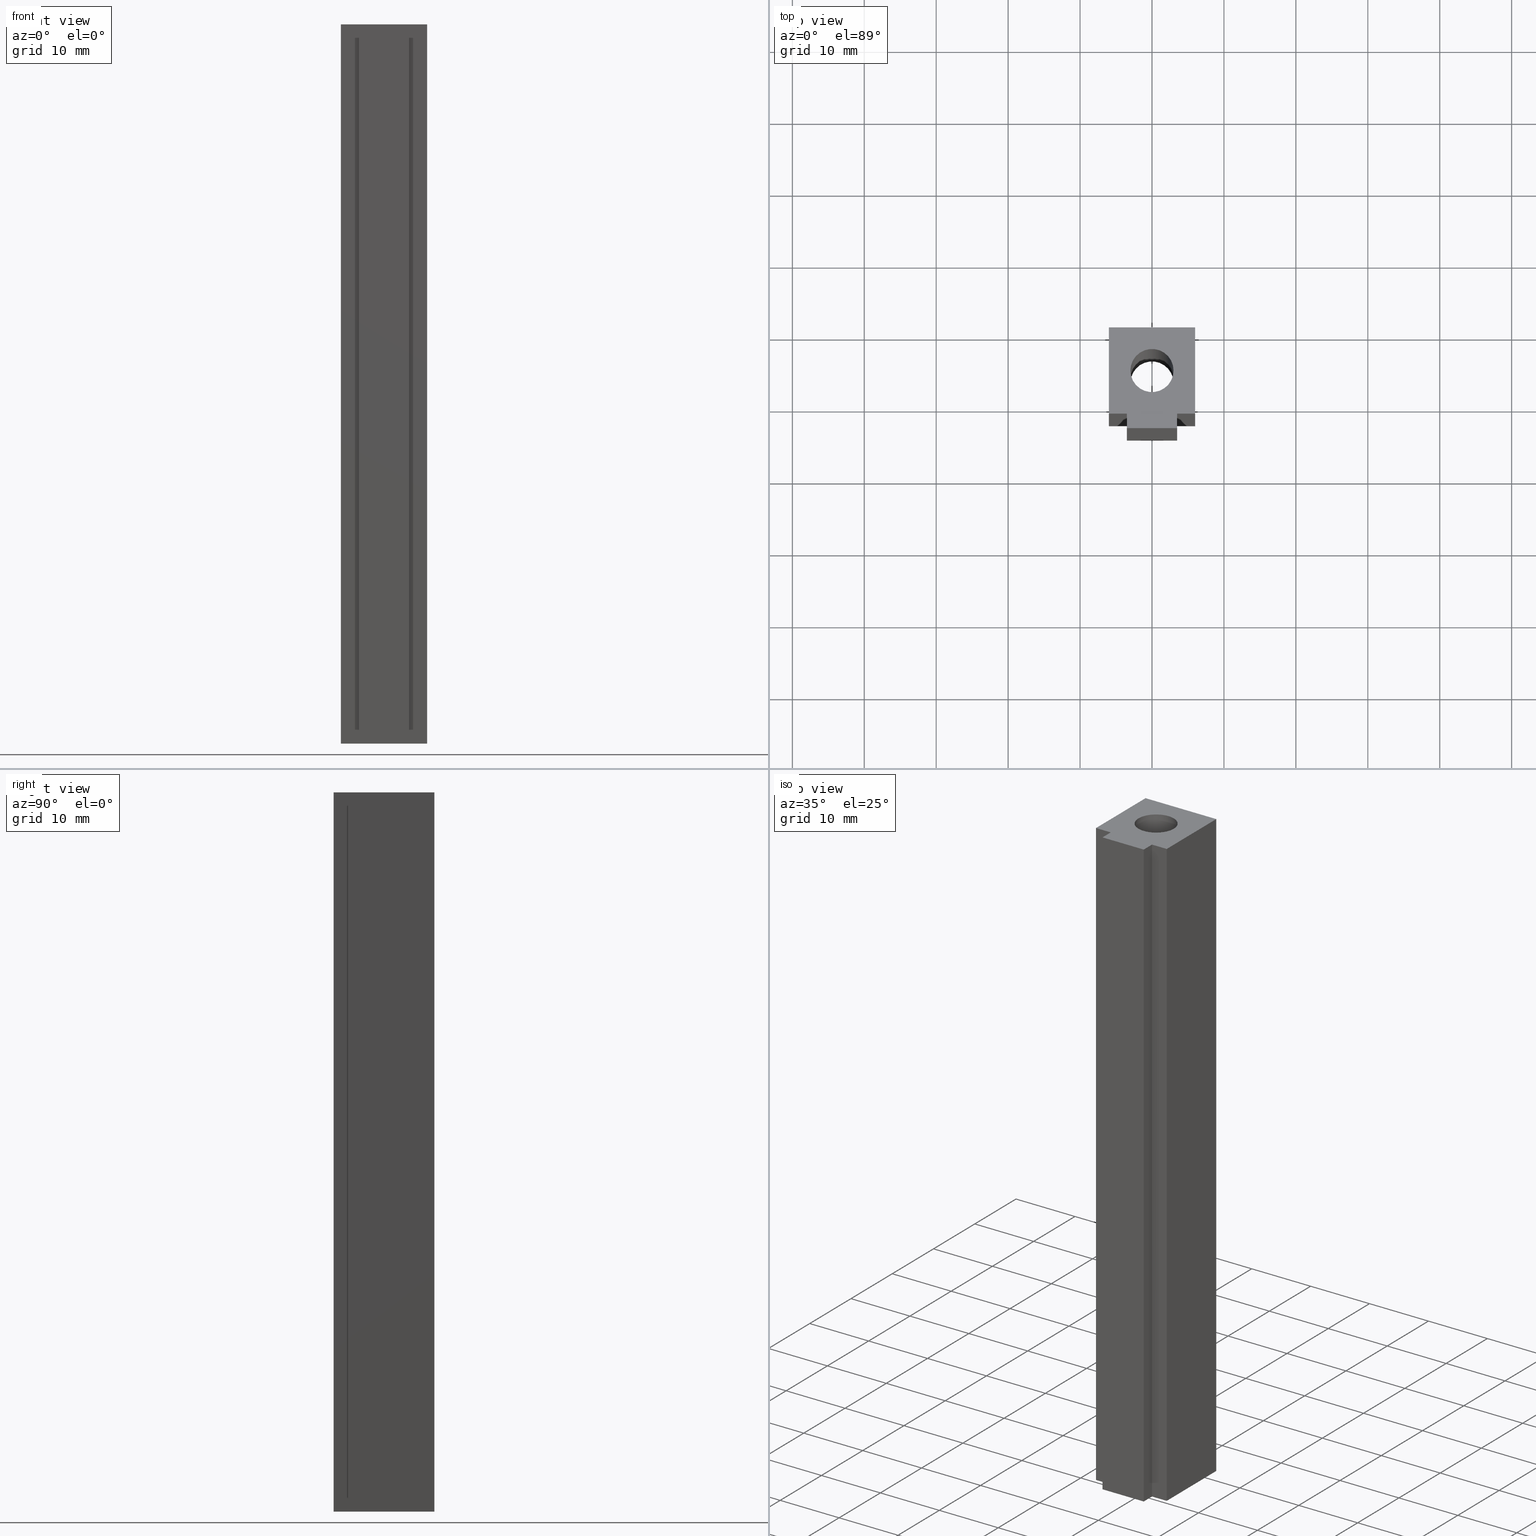
[diagram: canonical four-view strip — front | top / right | iso, engineering-drawing reading convention]
A machine part, canonical four-view strip (front | top / right | iso — engineering-drawing reading convention). The complete STEP part file that produces these views, byte-faithful:
ISO-10303-21;
HEADER;
/****************************************************************
 * Generated by software with PDElib inside                    *
 * PDElib Version v51a, created Wed 11/30/2011                  *
 * ITI Transcendata (http://www.transcendata.com/)              *
 ****************************************************************/
FILE_DESCRIPTION((''),'2;1');
FILE_NAME('H:\\Eigene Dateien\\CAD Workspace Vault\\CAD\\E_3_Nocken\\E_3_01_Aufschwei\S\_nocke\\09_Loch\\E_3_01_09_12_00_WKZ-0030.stp','2016-08-16T10:56:23',('dfischer'),(''),'Autodesk Inventor 2013','Autodesk Inventor 2013','');
FILE_SCHEMA(('AUTOMOTIVE_DESIGN { 1 0 10303 214 1 1 1 1 }'));
ENDSEC;
DATA;
#5=APPLICATION_CONTEXT('automotive design');
#6=APPLICATION_PROTOCOL_DEFINITION('International Standard','automotive_design',2001,#5);
#7=PRODUCT_CONTEXT('',#5,'mechanical');
#8=PRODUCT('E_3_01_09_12_00_WKZ-0030','E_3_01_09_12_00_WKZ-0030',$,(#7));
#9=PRODUCT_RELATED_PRODUCT_CATEGORY('part',$,(#8));
#10=PRODUCT_DEFINITION_FORMATION('',$,#8);
#11=PRODUCT_DEFINITION_CONTEXT('part definition',#5,'design');
#12=PRODUCT_DEFINITION('',$,#10,#11);
#18=(NAMED_UNIT(*)PLANE_ANGLE_UNIT()SI_UNIT($,.RADIAN.));
#19=DIMENSIONAL_EXPONENTS(0.0,0.0,0.0,0.0,0.0,0.0,0.0);
#20=PLANE_ANGLE_MEASURE_WITH_UNIT(PLANE_ANGLE_MEASURE(0.0174532925),#18);
#24=(CONVERSION_BASED_UNIT('DEGREE',#20)NAMED_UNIT(#19)PLANE_ANGLE_UNIT());
#28=(NAMED_UNIT(*)SI_UNIT($,.STERADIAN.)SOLID_ANGLE_UNIT());
#32=(LENGTH_UNIT()NAMED_UNIT(*)SI_UNIT(.MILLI.,.METRE.));
#34=UNCERTAINTY_MEASURE_WITH_UNIT(LENGTH_MEASURE(0.01),#32,'DISTANCE_ACCURACY_VALUE','');
#36=(GEOMETRIC_REPRESENTATION_CONTEXT(3)GLOBAL_UNCERTAINTY_ASSIGNED_CONTEXT((#34))GLOBAL_UNIT_ASSIGNED_CONTEXT((#24,#28,#32))REPRESENTATION_CONTEXT('None','None'));
#37=AXIS2_PLACEMENT_3D('',#38,#39,#40);
#38=CARTESIAN_POINT('',(0.0,0.0,0.0));
#39=DIRECTION('',(0.0,0.0,1.0));
#40=DIRECTION('',(1.0,0.0,0.0));
#41=SHAPE_REPRESENTATION('',(#37),#36);
#42=PRODUCT_DEFINITION_SHAPE('','',#12);
#43=SHAPE_DEFINITION_REPRESENTATION(#42,#41);
#49=(NAMED_UNIT(*)PLANE_ANGLE_UNIT()SI_UNIT($,.RADIAN.));
#50=DIMENSIONAL_EXPONENTS(0.0,0.0,0.0,0.0,0.0,0.0,0.0);
#51=PLANE_ANGLE_MEASURE_WITH_UNIT(PLANE_ANGLE_MEASURE(0.0174532925),#49);
#55=(CONVERSION_BASED_UNIT('DEGREE',#51)NAMED_UNIT(#50)PLANE_ANGLE_UNIT());
#59=(NAMED_UNIT(*)SI_UNIT($,.STERADIAN.)SOLID_ANGLE_UNIT());
#63=(LENGTH_UNIT()NAMED_UNIT(*)SI_UNIT(.MILLI.,.METRE.));
#65=UNCERTAINTY_MEASURE_WITH_UNIT(LENGTH_MEASURE(0.000001),#63,'DISTANCE_ACCURACY_VALUE','');
#67=(GEOMETRIC_REPRESENTATION_CONTEXT(3)GLOBAL_UNCERTAINTY_ASSIGNED_CONTEXT((#65))GLOBAL_UNIT_ASSIGNED_CONTEXT((#55,#59,#63))REPRESENTATION_CONTEXT('','3D'));
#68=CARTESIAN_POINT('',(4.930381E-032,-6.000000000000002,0.0));
#69=DIRECTION('',(0.0,0.0,1.0));
#70=DIRECTION('',(-1.0,0.0,0.0));
#71=AXIS2_PLACEMENT_3D('',#68,#69,#70);
#72=CYLINDRICAL_SURFACE('',#71,3.0);
#73=CARTESIAN_POINT('',(3.0,-6.000000000000002,-50.0));
#74=VERTEX_POINT('',#73);
#75=CARTESIAN_POINT('',(4.930381E-032,-6.000000000000002,-50.0));
#76=DIRECTION('',(0.0,0.0,1.0));
#77=DIRECTION('',(-1.0,0.0,0.0));
#78=AXIS2_PLACEMENT_3D('',#75,#76,#77);
#79=CIRCLE('',#78,3.0);
#80=EDGE_CURVE('',#74,#74,#79,.T.);
#81=ORIENTED_EDGE('',*,*,#80,.F.);
#82=EDGE_LOOP('',(#81));
#83=FACE_OUTER_BOUND('',#82,.T.);
#84=CARTESIAN_POINT('',(3.0,-6.000000000000002,50.0));
#85=VERTEX_POINT('',#84);
#86=CARTESIAN_POINT('',(4.930381E-032,-6.000000000000002,50.0));
#87=DIRECTION('',(0.0,0.0,-1.0));
#88=DIRECTION('',(-1.0,0.0,0.0));
#89=AXIS2_PLACEMENT_3D('',#86,#87,#88);
#90=CIRCLE('',#89,3.0);
#91=EDGE_CURVE('',#85,#85,#90,.T.);
#92=ORIENTED_EDGE('',*,*,#91,.F.);
#93=EDGE_LOOP('',(#92));
#94=FACE_BOUND('',#93,.T.);
#95=ADVANCED_FACE('',(#83,#94),#72,.F.);
#96=CARTESIAN_POINT('',(2.775558E-016,-6.80769230769231,-50.0));
#97=DIRECTION('',(0.0,0.0,1.0));
#98=DIRECTION('',(1.0,0.0,0.0));
#99=AXIS2_PLACEMENT_3D('',#96,#97,#98);
#100=PLANE('',#99);
#101=CARTESIAN_POINT('',(5.999999999999996,-12.000000000000004,-50.0));
#102=VERTEX_POINT('',#101);
#103=CARTESIAN_POINT('',(6.000000000000001,-2.220446E-015,-50.0));
#104=VERTEX_POINT('',#103);
#105=CARTESIAN_POINT('',(5.999999999999996,-12.000000000000004,-50.0));
#106=DIRECTION('',(0.0,1.0,0.0));
#107=VECTOR('',#106,12.000000000000002);
#108=LINE('',#105,#107);
#109=EDGE_CURVE('',#102,#104,#108,.T.);
#110=ORIENTED_EDGE('',*,*,#109,.F.);
#111=CARTESIAN_POINT('',(3.500000000000001,-12.000000000000002,-50.0));
#112=VERTEX_POINT('',#111);
#113=CARTESIAN_POINT('',(3.500000000000001,-12.000000000000002,-50.0));
#114=DIRECTION('',(1.0,0.0,0.0));
#115=VECTOR('',#114,2.499999999999995);
#116=LINE('',#113,#115);
#117=EDGE_CURVE('',#112,#102,#116,.T.);
#118=ORIENTED_EDGE('',*,*,#117,.F.);
#119=CARTESIAN_POINT('',(3.5,-14.000000000000004,-50.0));
#120=VERTEX_POINT('',#119);
#121=CARTESIAN_POINT('',(3.5,-14.000000000000004,-50.0));
#122=DIRECTION('',(0.0,1.0,0.0));
#123=VECTOR('',#122,2.000000000000002);
#124=LINE('',#121,#123);
#125=EDGE_CURVE('',#120,#112,#124,.T.);
#126=ORIENTED_EDGE('',*,*,#125,.F.);
#127=CARTESIAN_POINT('',(-3.5,-14.000000000000004,-50.0));
#128=VERTEX_POINT('',#127);
#129=CARTESIAN_POINT('',(-3.5,-14.000000000000004,-50.0));
#130=DIRECTION('',(1.0,0.0,0.0));
#131=VECTOR('',#130,7.000000000000001);
#132=LINE('',#129,#131);
#133=EDGE_CURVE('',#128,#120,#132,.T.);
#134=ORIENTED_EDGE('',*,*,#133,.F.);
#135=CARTESIAN_POINT('',(-3.500000000000001,-12.000000000000002,-50.0));
#136=VERTEX_POINT('',#135);
#137=CARTESIAN_POINT('',(-3.500000000000002,-12.000000000000002,-50.0));
#138=DIRECTION('',(0.0,-1.0,0.0));
#139=VECTOR('',#138,2.000000000000002);
#140=LINE('',#137,#139);
#141=EDGE_CURVE('',#136,#128,#140,.T.);
#142=ORIENTED_EDGE('',*,*,#141,.F.);
#143=CARTESIAN_POINT('',(-5.999999999999996,-12.000000000000004,-50.0));
#144=VERTEX_POINT('',#143);
#145=CARTESIAN_POINT('',(-5.999999999999996,-12.000000000000004,-50.0));
#146=DIRECTION('',(1.0,0.0,0.0));
#147=VECTOR('',#146,2.499999999999995);
#148=LINE('',#145,#147);
#149=EDGE_CURVE('',#144,#136,#148,.T.);
#150=ORIENTED_EDGE('',*,*,#149,.F.);
#151=CARTESIAN_POINT('',(-6.000000000000001,-2.220446E-015,-50.0));
#152=VERTEX_POINT('',#151);
#153=CARTESIAN_POINT('',(-6.000000000000001,-1.776357E-015,-50.0));
#154=DIRECTION('',(0.0,-1.0,0.0));
#155=VECTOR('',#154,12.000000000000002);
#156=LINE('',#153,#155);
#157=EDGE_CURVE('',#152,#144,#156,.T.);
#158=ORIENTED_EDGE('',*,*,#157,.F.);
#159=CARTESIAN_POINT('',(6.000000000000001,-2.220446E-015,-50.0));
#160=DIRECTION('',(-1.0,0.0,0.0));
#161=VECTOR('',#160,12.000000000000002);
#162=LINE('',#159,#161);
#163=EDGE_CURVE('',#104,#152,#162,.T.);
#164=ORIENTED_EDGE('',*,*,#163,.F.);
#165=EDGE_LOOP('',(#110,#118,#126,#134,#142,#150,#158,#164));
#166=FACE_OUTER_BOUND('',#165,.T.);
#167=ORIENTED_EDGE('',*,*,#80,.T.);
#168=EDGE_LOOP('',(#167));
#169=FACE_BOUND('',#168,.T.);
#170=ADVANCED_FACE('',(#166,#169),#100,.F.);
#171=CARTESIAN_POINT('',(3.500000000000001,-12.000000000000002,0.0));
#172=DIRECTION('',(1.0,0.0,0.0));
#173=DIRECTION('',(0.0,0.0,-1.0));
#174=AXIS2_PLACEMENT_3D('',#171,#172,#173);
#175=PLANE('',#174);
#176=CARTESIAN_POINT('',(3.500000000000001,-12.000000000000002,50.0));
#177=VERTEX_POINT('',#176);
#178=CARTESIAN_POINT('',(3.5,-14.000000000000004,50.0));
#179=VERTEX_POINT('',#178);
#180=CARTESIAN_POINT('',(3.500000000000001,-12.000000000000002,50.0));
#181=DIRECTION('',(0.0,-1.0,0.0));
#182=VECTOR('',#181,2.000000000000002);
#183=LINE('',#180,#182);
#184=EDGE_CURVE('',#177,#179,#183,.T.);
#185=ORIENTED_EDGE('',*,*,#184,.T.);
#186=CARTESIAN_POINT('',(3.5,-14.000000000000004,50.0));
#187=DIRECTION('',(0.0,0.0,-1.0));
#188=VECTOR('',#187,100.0);
#189=LINE('',#186,#188);
#190=EDGE_CURVE('',#179,#120,#189,.T.);
#191=ORIENTED_EDGE('',*,*,#190,.T.);
#192=ORIENTED_EDGE('',*,*,#125,.T.);
#193=CARTESIAN_POINT('',(3.500000000000001,-12.000000000000002,50.0));
#194=DIRECTION('',(0.0,0.0,-1.0));
#195=VECTOR('',#194,100.0);
#196=LINE('',#193,#195);
#197=EDGE_CURVE('',#177,#112,#196,.T.);
#198=ORIENTED_EDGE('',*,*,#197,.F.);
#199=EDGE_LOOP('',(#185,#191,#192,#198));
#200=FACE_OUTER_BOUND('',#199,.T.);
#201=ADVANCED_FACE('',(#200),#175,.T.);
#202=CARTESIAN_POINT('',(3.5,-14.000000000000004,0.0));
#203=DIRECTION('',(0.0,-1.0,0.0));
#204=DIRECTION('',(0.0,0.0,-1.0));
#205=AXIS2_PLACEMENT_3D('',#202,#203,#204);
#206=PLANE('',#205);
#207=CARTESIAN_POINT('',(-3.5,-14.000000000000004,50.0));
#208=VERTEX_POINT('',#207);
#209=CARTESIAN_POINT('',(3.5,-14.000000000000004,50.0));
#210=DIRECTION('',(-1.0,0.0,0.0));
#211=VECTOR('',#210,7.000000000000001);
#212=LINE('',#209,#211);
#213=EDGE_CURVE('',#179,#208,#212,.T.);
#214=ORIENTED_EDGE('',*,*,#213,.T.);
#215=CARTESIAN_POINT('',(-3.5,-14.000000000000004,50.0));
#216=DIRECTION('',(0.0,0.0,-1.0));
#217=VECTOR('',#216,100.0);
#218=LINE('',#215,#217);
#219=EDGE_CURVE('',#208,#128,#218,.T.);
#220=ORIENTED_EDGE('',*,*,#219,.T.);
#221=ORIENTED_EDGE('',*,*,#133,.T.);
#222=ORIENTED_EDGE('',*,*,#190,.F.);
#223=EDGE_LOOP('',(#214,#220,#221,#222));
#224=FACE_OUTER_BOUND('',#223,.T.);
#225=ADVANCED_FACE('',(#224),#206,.T.);
#226=CARTESIAN_POINT('',(-3.5,-14.000000000000004,0.0));
#227=DIRECTION('',(-1.0,0.0,0.0));
#228=DIRECTION('',(0.0,0.0,1.0));
#229=AXIS2_PLACEMENT_3D('',#226,#227,#228);
#230=PLANE('',#229);
#231=CARTESIAN_POINT('',(-3.500000000000001,-12.000000000000002,50.0));
#232=VERTEX_POINT('',#231);
#233=CARTESIAN_POINT('',(-3.5,-14.000000000000004,50.0));
#234=DIRECTION('',(0.0,1.0,0.0));
#235=VECTOR('',#234,2.000000000000002);
#236=LINE('',#233,#235);
#237=EDGE_CURVE('',#208,#232,#236,.T.);
#238=ORIENTED_EDGE('',*,*,#237,.T.);
#239=CARTESIAN_POINT('',(-3.500000000000001,-12.000000000000002,50.0));
#240=DIRECTION('',(0.0,0.0,-1.0));
#241=VECTOR('',#240,100.0);
#242=LINE('',#239,#241);
#243=EDGE_CURVE('',#232,#136,#242,.T.);
#244=ORIENTED_EDGE('',*,*,#243,.T.);
#245=ORIENTED_EDGE('',*,*,#141,.T.);
#246=ORIENTED_EDGE('',*,*,#219,.F.);
#247=EDGE_LOOP('',(#238,#244,#245,#246));
#248=FACE_OUTER_BOUND('',#247,.T.);
#249=ADVANCED_FACE('',(#248),#230,.T.);
#250=CARTESIAN_POINT('',(-3.500000000000001,-12.000000000000002,0.0));
#251=DIRECTION('',(0.0,-1.0,0.0));
#252=DIRECTION('',(0.0,0.0,-1.0));
#253=AXIS2_PLACEMENT_3D('',#250,#251,#252);
#254=PLANE('',#253);
#255=CARTESIAN_POINT('',(-5.999999999999996,-12.000000000000004,50.0));
#256=VERTEX_POINT('',#255);
#257=CARTESIAN_POINT('',(-3.500000000000001,-12.000000000000002,50.0));
#258=DIRECTION('',(-1.0,0.0,0.0));
#259=VECTOR('',#258,2.499999999999995);
#260=LINE('',#257,#259);
#261=EDGE_CURVE('',#232,#256,#260,.T.);
#262=ORIENTED_EDGE('',*,*,#261,.T.);
#263=CARTESIAN_POINT('',(-5.999999999999996,-12.000000000000004,50.0));
#264=DIRECTION('',(0.0,0.0,-1.0));
#265=VECTOR('',#264,100.0);
#266=LINE('',#263,#265);
#267=EDGE_CURVE('',#256,#144,#266,.T.);
#268=ORIENTED_EDGE('',*,*,#267,.T.);
#269=ORIENTED_EDGE('',*,*,#149,.T.);
#270=ORIENTED_EDGE('',*,*,#243,.F.);
#271=EDGE_LOOP('',(#262,#268,#269,#270));
#272=FACE_OUTER_BOUND('',#271,.T.);
#273=ADVANCED_FACE('',(#272),#254,.T.);
#274=CARTESIAN_POINT('',(-5.999999999999996,-12.000000000000004,0.0));
#275=DIRECTION('',(-1.0,0.0,0.0));
#276=DIRECTION('',(0.0,0.0,1.0));
#277=AXIS2_PLACEMENT_3D('',#274,#275,#276);
#278=PLANE('',#277);
#279=CARTESIAN_POINT('',(-6.000000000000001,-2.220446E-015,50.0));
#280=VERTEX_POINT('',#279);
#281=CARTESIAN_POINT('',(-5.999999999999996,-12.000000000000004,50.0));
#282=DIRECTION('',(0.0,1.0,0.0));
#283=VECTOR('',#282,12.000000000000002);
#284=LINE('',#281,#283);
#285=EDGE_CURVE('',#256,#280,#284,.T.);
#286=ORIENTED_EDGE('',*,*,#285,.T.);
#287=CARTESIAN_POINT('',(-6.000000000000001,-2.220446E-015,50.0));
#288=DIRECTION('',(0.0,0.0,-1.0));
#289=VECTOR('',#288,100.0);
#290=LINE('',#287,#289);
#291=EDGE_CURVE('',#280,#152,#290,.T.);
#292=ORIENTED_EDGE('',*,*,#291,.T.);
#293=ORIENTED_EDGE('',*,*,#157,.T.);
#294=ORIENTED_EDGE('',*,*,#267,.F.);
#295=EDGE_LOOP('',(#286,#292,#293,#294));
#296=FACE_OUTER_BOUND('',#295,.T.);
#297=ADVANCED_FACE('',(#296),#278,.T.);
#298=CARTESIAN_POINT('',(-6.000000000000001,-2.220446E-015,0.0));
#299=DIRECTION('',(0.0,1.0,0.0));
#300=DIRECTION('',(0.0,0.0,1.0));
#301=AXIS2_PLACEMENT_3D('',#298,#299,#300);
#302=PLANE('',#301);
#303=CARTESIAN_POINT('',(6.000000000000001,-2.220446E-015,50.0));
#304=VERTEX_POINT('',#303);
#305=CARTESIAN_POINT('',(-6.000000000000001,-2.220446E-015,50.0));
#306=DIRECTION('',(1.0,0.0,0.0));
#307=VECTOR('',#306,12.000000000000002);
#308=LINE('',#305,#307);
#309=EDGE_CURVE('',#280,#304,#308,.T.);
#310=ORIENTED_EDGE('',*,*,#309,.T.);
#311=CARTESIAN_POINT('',(6.000000000000001,-2.220446E-015,50.0));
#312=DIRECTION('',(0.0,0.0,-1.0));
#313=VECTOR('',#312,100.0);
#314=LINE('',#311,#313);
#315=EDGE_CURVE('',#304,#104,#314,.T.);
#316=ORIENTED_EDGE('',*,*,#315,.T.);
#317=ORIENTED_EDGE('',*,*,#163,.T.);
#318=ORIENTED_EDGE('',*,*,#291,.F.);
#319=EDGE_LOOP('',(#310,#316,#317,#318));
#320=FACE_OUTER_BOUND('',#319,.T.);
#321=ADVANCED_FACE('',(#320),#302,.T.);
#322=CARTESIAN_POINT('',(6.000000000000001,-2.220446E-015,0.0));
#323=DIRECTION('',(1.0,0.0,0.0));
#324=DIRECTION('',(0.0,0.0,-1.0));
#325=AXIS2_PLACEMENT_3D('',#322,#323,#324);
#326=PLANE('',#325);
#327=CARTESIAN_POINT('',(5.999999999999996,-12.000000000000004,50.0));
#328=VERTEX_POINT('',#327);
#329=CARTESIAN_POINT('',(6.000000000000001,-2.220446E-015,50.0));
#330=DIRECTION('',(0.0,-1.0,0.0));
#331=VECTOR('',#330,12.000000000000002);
#332=LINE('',#329,#331);
#333=EDGE_CURVE('',#304,#328,#332,.T.);
#334=ORIENTED_EDGE('',*,*,#333,.T.);
#335=CARTESIAN_POINT('',(5.999999999999996,-12.000000000000004,-50.0));
#336=DIRECTION('',(0.0,0.0,1.0));
#337=VECTOR('',#336,100.0);
#338=LINE('',#335,#337);
#339=EDGE_CURVE('',#102,#328,#338,.T.);
#340=ORIENTED_EDGE('',*,*,#339,.F.);
#341=ORIENTED_EDGE('',*,*,#109,.T.);
#342=ORIENTED_EDGE('',*,*,#315,.F.);
#343=EDGE_LOOP('',(#334,#340,#341,#342));
#344=FACE_OUTER_BOUND('',#343,.T.);
#345=ADVANCED_FACE('',(#344),#326,.T.);
#346=CARTESIAN_POINT('',(5.999999999999996,-12.000000000000004,0.0));
#347=DIRECTION('',(0.0,-1.0,0.0));
#348=DIRECTION('',(0.0,0.0,-1.0));
#349=AXIS2_PLACEMENT_3D('',#346,#347,#348);
#350=PLANE('',#349);
#351=CARTESIAN_POINT('',(5.999999999999996,-12.000000000000004,50.0));
#352=DIRECTION('',(-1.0,0.0,0.0));
#353=VECTOR('',#352,2.499999999999995);
#354=LINE('',#351,#353);
#355=EDGE_CURVE('',#328,#177,#354,.T.);
#356=ORIENTED_EDGE('',*,*,#355,.T.);
#357=ORIENTED_EDGE('',*,*,#197,.T.);
#358=ORIENTED_EDGE('',*,*,#117,.T.);
#359=ORIENTED_EDGE('',*,*,#339,.T.);
#360=EDGE_LOOP('',(#356,#357,#358,#359));
#361=FACE_OUTER_BOUND('',#360,.T.);
#362=ADVANCED_FACE('',(#361),#350,.T.);
#363=CARTESIAN_POINT('',(1.734723E-016,-6.80769230769231,50.0));
#364=DIRECTION('',(0.0,0.0,1.0));
#365=DIRECTION('',(1.0,0.0,0.0));
#366=AXIS2_PLACEMENT_3D('',#363,#364,#365);
#367=PLANE('',#366);
#368=ORIENTED_EDGE('',*,*,#184,.F.);
#369=ORIENTED_EDGE('',*,*,#355,.F.);
#370=ORIENTED_EDGE('',*,*,#333,.F.);
#371=ORIENTED_EDGE('',*,*,#309,.F.);
#372=ORIENTED_EDGE('',*,*,#285,.F.);
#373=ORIENTED_EDGE('',*,*,#261,.F.);
#374=ORIENTED_EDGE('',*,*,#237,.F.);
#375=ORIENTED_EDGE('',*,*,#213,.F.);
#376=EDGE_LOOP('',(#368,#369,#370,#371,#372,#373,#374,#375));
#377=FACE_OUTER_BOUND('',#376,.T.);
#378=ORIENTED_EDGE('',*,*,#91,.T.);
#379=EDGE_LOOP('',(#378));
#380=FACE_BOUND('',#379,.T.);
#381=ADVANCED_FACE('',(#377,#380),#367,.T.);
#382=CLOSED_SHELL('',(#95,#170,#201,#225,#249,#273,#297,#321,#345,#362,#381));
#383=MANIFOLD_SOLID_BREP('Volumenk\S\vrper1',#382);
#384=COLOUR_RGB('',0.201960995793343,0.201960995793343,0.201960995793343);
#385=FILL_AREA_STYLE_COLOUR('',#384);
#386=FILL_AREA_STYLE('',(#385));
#387=SURFACE_STYLE_FILL_AREA(#386);
#388=SURFACE_SIDE_STYLE('',(#387));
#389=SURFACE_STYLE_USAGE(.BOTH.,#388);
#390=PRESENTATION_STYLE_ASSIGNMENT((#389));
#391=STYLED_ITEM('',(#390),#225);
#392=MECHANICAL_DESIGN_GEOMETRIC_PRESENTATION_REPRESENTATION('',(#391,#400),#67);
#393=COLOUR_RGB('Glatt - wei\X2\FFFD\X0\',0.920000016689301,0.920000016689301,0.920000016689301);
#394=FILL_AREA_STYLE_COLOUR('Glatt - wei\X2\FFFD\X0\',#393);
#395=FILL_AREA_STYLE('Glatt - wei\X2\FFFD\X0\',(#394));
#396=SURFACE_STYLE_FILL_AREA(#395);
#397=SURFACE_SIDE_STYLE('Glatt - wei\X2\FFFD\X0\',(#396));
#398=SURFACE_STYLE_USAGE(.BOTH.,#397);
#399=PRESENTATION_STYLE_ASSIGNMENT((#398));
#400=STYLED_ITEM('',(#399),#383);
#401=ADVANCED_BREP_SHAPE_REPRESENTATION('ABSR',(#383),#36);
#402=SHAPE_REPRESENTATION_RELATIONSHIP('SRR','None',#401,#41);
ENDSEC;
END-ISO-10303-21;
